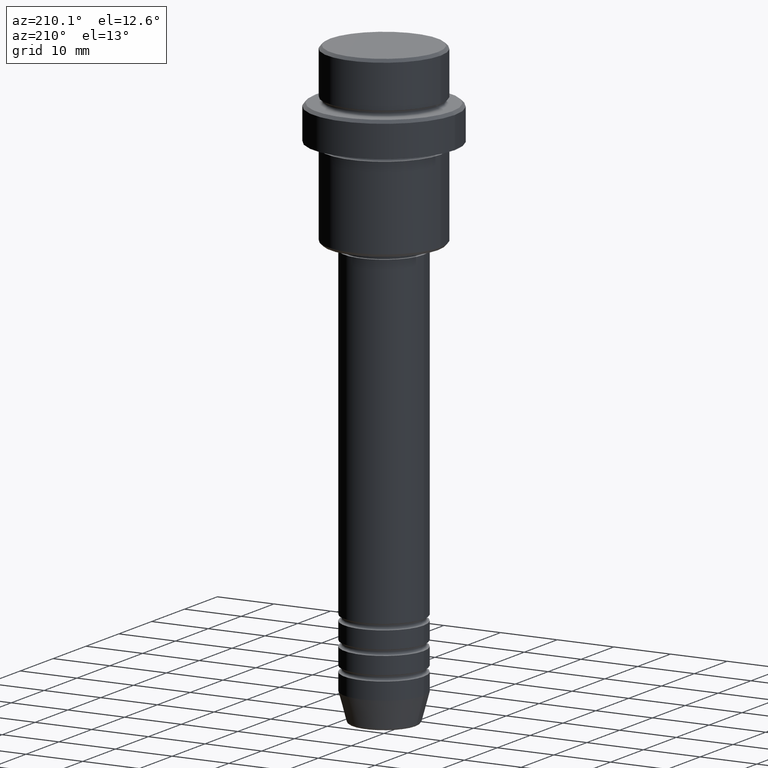
[diagram: clean part render]
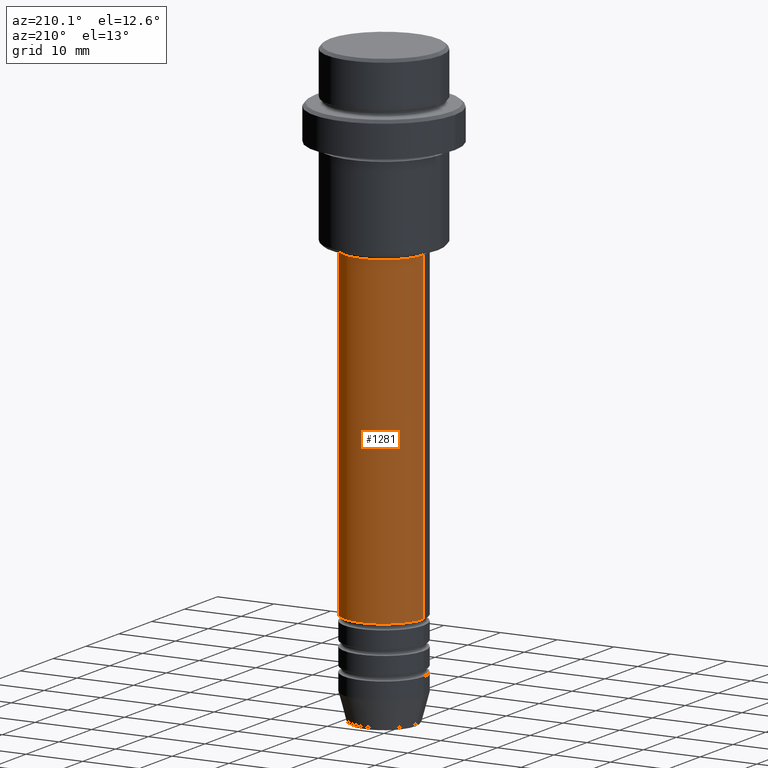
[diagram: same view with one face highlighted and labeled with its STEP entity id]
A machine part, auxiliary view. The second image highlights one B-rep face of the part: STEP entity #1281.
In plain terms, the highlighted cylindrical surface (partial cylindrical patch) has radius 7 mm, axis along (-0, -0, 1).
Its self-contained STEP definition (entity closure, byte-faithful):
#15 = EDGE_CURVE ( 'NONE', #1199, #1013, #270, .T. ) ;
#16 = VECTOR ( 'NONE', #1249, 1000.000000000000000 ) ;
#139 = CARTESIAN_POINT ( 'NONE',  ( -7.000000000000000000, 8.572527594031473190E-16, -88.99999999999988631 ) ) ;
#188 = DIRECTION ( 'NONE',  ( 1.000000000000000000, 0.000000000000000000, 0.000000000000000000 ) ) ;
#257 = VERTEX_POINT ( 'NONE', #810 ) ;
#263 = EDGE_CURVE ( 'NONE', #1055, #1013, #563, .T. ) ;
#265 = FACE_OUTER_BOUND ( 'NONE', #855, .T. ) ;
#270 = LINE ( 'NONE', #910, #16 ) ;
#303 = DIRECTION ( 'NONE',  ( -0.000000000000000000, -0.000000000000000000, 1.000000000000000000 ) ) ;
#358 = ORIENTED_EDGE ( 'NONE', *, *, #263, .F. ) ;
#361 = EDGE_CURVE ( 'NONE', #257, #1199, #1003, .T. ) ;
#378 = DIRECTION ( 'NONE',  ( -0.000000000000000000, -0.000000000000000000, 1.000000000000000000 ) ) ;
#563 = CIRCLE ( 'NONE', #827, 7.000000000000000000 ) ;
#616 = DIRECTION ( 'NONE',  ( -0.000000000000000000, -0.000000000000000000, 1.000000000000000000 ) ) ;
#643 = ORIENTED_EDGE ( 'NONE', *, *, #958, .F. ) ;
#718 = CARTESIAN_POINT ( 'NONE',  ( 0.000000000000000000, 0.000000000000000000, 0.000000000000000000 ) ) ;
#741 = LINE ( 'NONE', #1060, #938 ) ;
#810 = CARTESIAN_POINT ( 'NONE',  ( 7.000000000000000000, 0.000000000000000000, -88.99999999999988631 ) ) ;
#825 = CYLINDRICAL_SURFACE ( 'NONE', #1077, 7.000000000000000000 ) ;
#827 = AXIS2_PLACEMENT_3D ( 'NONE', #922, #378, #1370 ) ;
#855 = EDGE_LOOP ( 'NONE', ( #1064, #888, #358, #643 ) ) ;
#888 = ORIENTED_EDGE ( 'NONE', *, *, #15, .T. ) ;
#910 = CARTESIAN_POINT ( 'NONE',  ( -7.000000000000000000, 8.572527594031473190E-16, 0.000000000000000000 ) ) ;
#922 = CARTESIAN_POINT ( 'NONE',  ( 0.000000000000000000, 0.000000000000000000, -31.99999999999997868 ) ) ;
#938 = VECTOR ( 'NONE', #616, 1000.000000000000000 ) ;
#940 = DIRECTION ( 'NONE',  ( 1.000000000000000000, 0.000000000000000000, 0.000000000000000000 ) ) ;
#956 = CARTESIAN_POINT ( 'NONE',  ( -7.000000000000000000, 8.572527594031473190E-16, -31.99999999999997868 ) ) ;
#958 = EDGE_CURVE ( 'NONE', #257, #1055, #741, .T. ) ;
#979 = CARTESIAN_POINT ( 'NONE',  ( 7.000000000000000000, 0.000000000000000000, -31.99999999999997868 ) ) ;
#1003 = CIRCLE ( 'NONE', #1186, 7.000000000000000000 ) ;
#1013 = VERTEX_POINT ( 'NONE', #956 ) ;
#1055 = VERTEX_POINT ( 'NONE', #979 ) ;
#1060 = CARTESIAN_POINT ( 'NONE',  ( 7.000000000000000000, 0.000000000000000000, 0.000000000000000000 ) ) ;
#1064 = ORIENTED_EDGE ( 'NONE', *, *, #361, .T. ) ;
#1077 = AXIS2_PLACEMENT_3D ( 'NONE', #718, #1273, #940 ) ;
#1186 = AXIS2_PLACEMENT_3D ( 'NONE', #1291, #303, #188 ) ;
#1199 = VERTEX_POINT ( 'NONE', #139 ) ;
#1249 = DIRECTION ( 'NONE',  ( -0.000000000000000000, -0.000000000000000000, 1.000000000000000000 ) ) ;
#1273 = DIRECTION ( 'NONE',  ( -0.000000000000000000, -0.000000000000000000, 1.000000000000000000 ) ) ;
#1281 = ADVANCED_FACE ( 'NONE', ( #265 ), #825, .T. ) ;
#1291 = CARTESIAN_POINT ( 'NONE',  ( 0.000000000000000000, 0.000000000000000000, -88.99999999999988631 ) ) ;
#1370 = DIRECTION ( 'NONE',  ( 1.000000000000000000, 0.000000000000000000, 0.000000000000000000 ) ) ;